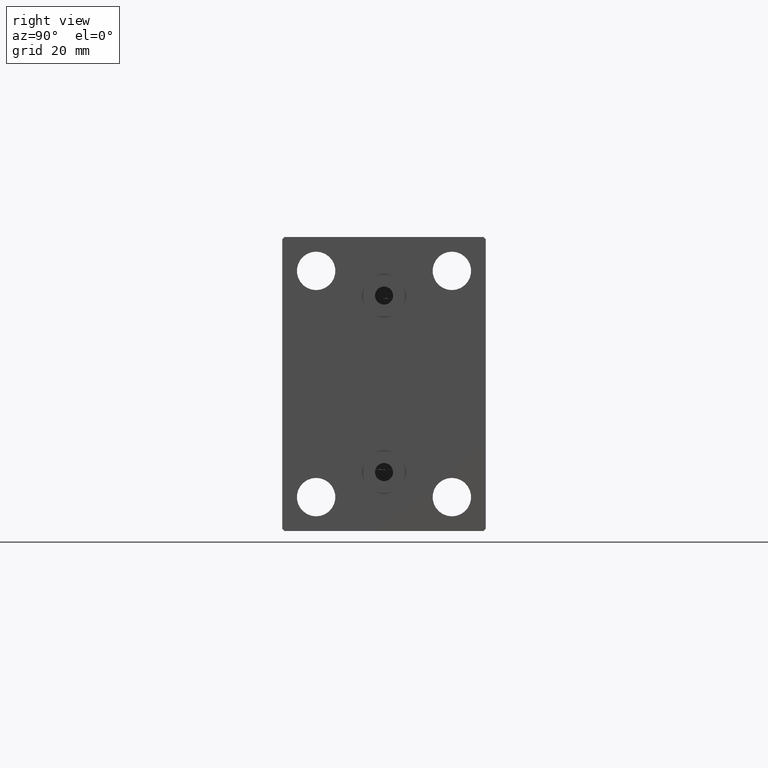
[diagram: clean part render]
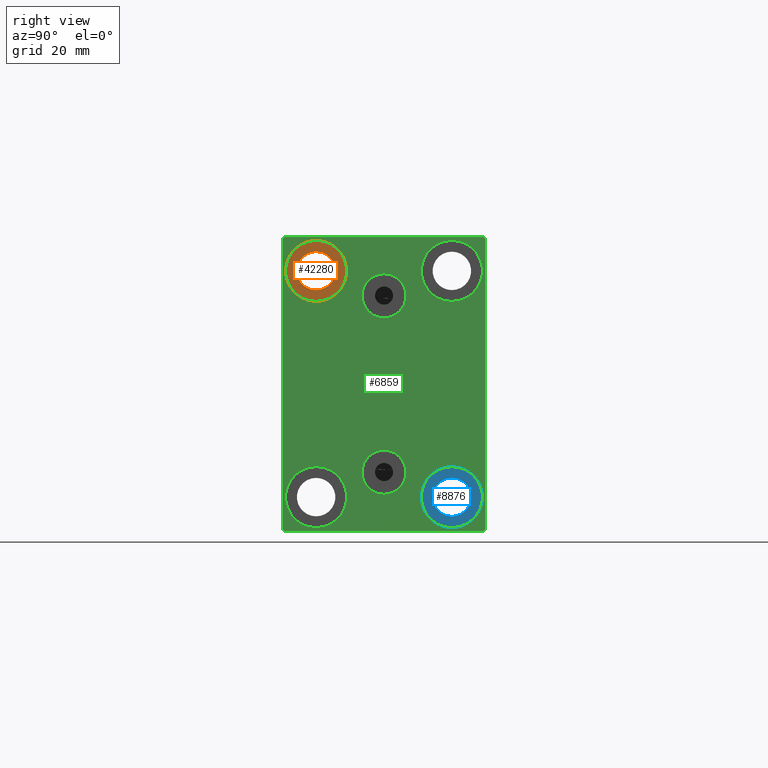
[diagram: same view with three faces highlighted in distinct colors, each labeled with its STEP entity id]
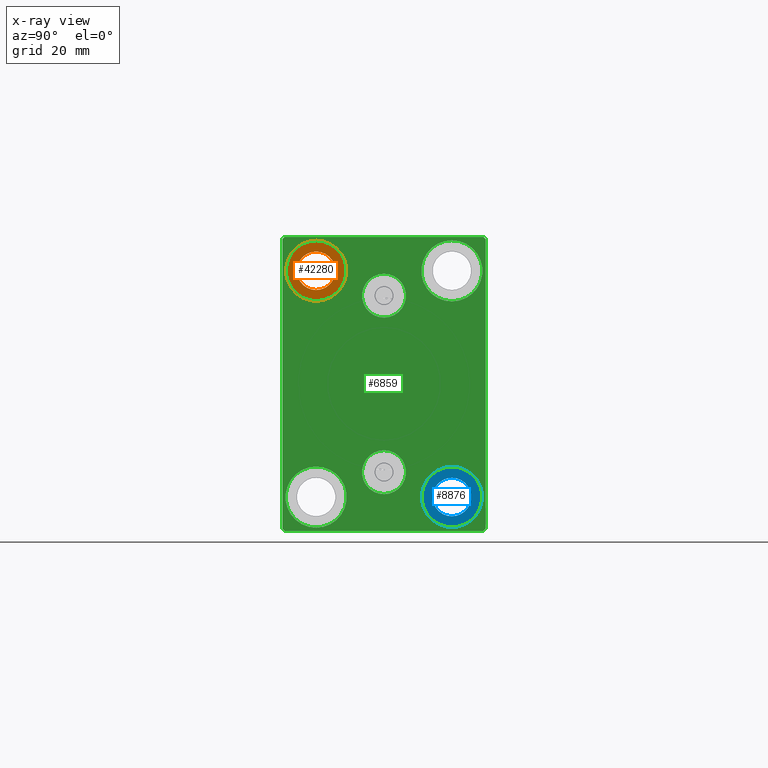
[diagram: x-ray of the same camera — body ghosted, the three highlighted faces saturated]
A machine part, right view with three faces highlighted in distinct colors.
The next image is the same camera in x-ray (body ghosted, the three faces saturated) — at least one of them is partly hidden behind the body in this view.
Their STEP definitions:

[orange] entity #42280 — the highlighted planar face has unit normal (1, 0, 0).
#24 = EDGE_CURVE ( 'NONE', #31684, #26396, #37710, .T. ) ;
#2554 = ORIENTED_EDGE ( 'NONE', *, *, #19885, .F. ) ;
#4885 = AXIS2_PLACEMENT_3D ( 'NONE', #18732, #5231, #26462 ) ;
#5231 = DIRECTION ( 'NONE',  ( -1.000000000000000000, -0.000000000000000000, -0.000000000000000000 ) ) ;
#7244 = ORIENTED_EDGE ( 'NONE', *, *, #39471, .F. ) ;
#7815 = EDGE_CURVE ( 'NONE', #26396, #31684, #14562, .T. ) ;
#8600 = ORIENTED_EDGE ( 'NONE', *, *, #7815, .T. ) ;
#9116 = CARTESIAN_POINT ( 'NONE',  ( 121.0000000000000142, -14.99999999999999645, 20.75000000000000355 ) ) ;
#9372 = VERTEX_POINT ( 'NONE', #19886 ) ;
#9648 = DIRECTION ( 'NONE',  ( 0.000000000000000000, 0.000000000000000000, -1.000000000000000000 ) ) ;
#11488 = CARTESIAN_POINT ( 'NONE',  ( 121.0000000000000142, -14.99999999999999645, 25.00000000000000000 ) ) ;
#11710 = DIRECTION ( 'NONE',  ( -1.000000000000000000, -0.000000000000000000, -0.000000000000000000 ) ) ;
#11936 = DIRECTION ( 'NONE',  ( 0.000000000000000000, 0.000000000000000000, -1.000000000000000000 ) ) ;
#12151 = CIRCLE ( 'NONE', #42560, 6.749999999999999112 ) ;
#12292 = EDGE_LOOP ( 'NONE', ( #21875, #8600 ) ) ;
#14562 = CIRCLE ( 'NONE', #39326, 4.249999999999996447 ) ;
#15556 = DIRECTION ( 'NONE',  ( -1.000000000000000000, -0.000000000000000000, -0.000000000000000000 ) ) ;
#15848 = CARTESIAN_POINT ( 'NONE',  ( 121.0000000000000142, -14.99999999999999645, 29.25000000000000000 ) ) ;
#17227 = FACE_BOUND ( 'NONE', #12292, .T. ) ;
#17440 = CARTESIAN_POINT ( 'NONE',  ( 121.0000000000000142, 0.000000000000000000, 0.000000000000000000 ) ) ;
#17647 = DIRECTION ( 'NONE',  ( 1.000000000000000000, 0.000000000000000000, -0.000000000000000000 ) ) ;
#18732 = CARTESIAN_POINT ( 'NONE',  ( 121.0000000000000142, -14.99999999999999645, 25.00000000000000000 ) ) ;
#19885 = EDGE_CURVE ( 'NONE', #27670, #9372, #23980, .T. ) ;
#19886 = CARTESIAN_POINT ( 'NONE',  ( 121.0000000000000142, -14.99999999999999645, 31.75000000000000000 ) ) ;
#19971 = AXIS2_PLACEMENT_3D ( 'NONE', #17440, #17647, #22912 ) ;
#21875 = ORIENTED_EDGE ( 'NONE', *, *, #24, .T. ) ;
#21980 = CARTESIAN_POINT ( 'NONE',  ( 121.0000000000000142, -14.99999999999999645, 25.00000000000000000 ) ) ;
#22912 = DIRECTION ( 'NONE',  ( 0.000000000000000000, 0.000000000000000000, 1.000000000000000000 ) ) ;
#23980 = CIRCLE ( 'NONE', #4885, 6.749999999999999112 ) ;
#26396 = VERTEX_POINT ( 'NONE', #9116 ) ;
#26462 = DIRECTION ( 'NONE',  ( 0.000000000000000000, 0.000000000000000000, 1.000000000000000000 ) ) ;
#26476 = DIRECTION ( 'NONE',  ( -1.000000000000000000, -0.000000000000000000, -0.000000000000000000 ) ) ;
#27670 = VERTEX_POINT ( 'NONE', #40822 ) ;
#29794 = CARTESIAN_POINT ( 'NONE',  ( 121.0000000000000142, -14.99999999999999645, 25.00000000000000000 ) ) ;
#31684 = VERTEX_POINT ( 'NONE', #15848 ) ;
#34275 = FACE_OUTER_BOUND ( 'NONE', #41586, .T. ) ;
#34486 = PLANE ( 'NONE',  #19971 ) ;
#36322 = AXIS2_PLACEMENT_3D ( 'NONE', #29794, #26476, #9648 ) ;
#37710 = CIRCLE ( 'NONE', #36322, 4.249999999999996447 ) ;
#39326 = AXIS2_PLACEMENT_3D ( 'NONE', #11488, #11710, #11936 ) ;
#39471 = EDGE_CURVE ( 'NONE', #9372, #27670, #12151, .T. ) ;
#40822 = CARTESIAN_POINT ( 'NONE',  ( 121.0000000000000142, -14.99999999999999645, 18.25000000000000355 ) ) ;
#41586 = EDGE_LOOP ( 'NONE', ( #2554, #7244 ) ) ;
#41682 = DIRECTION ( 'NONE',  ( 0.000000000000000000, 0.000000000000000000, 1.000000000000000000 ) ) ;
#42280 = ADVANCED_FACE ( 'NONE', ( #34275, #17227 ), #34486, .T. ) ;
#42560 = AXIS2_PLACEMENT_3D ( 'NONE', #21980, #15556, #41682 ) ;

[blue] entity #8876 — the highlighted planar face has unit normal (1, 0, 0).
#1765 = DIRECTION ( 'NONE',  ( -1.000000000000000000, -0.000000000000000000, -0.000000000000000000 ) ) ;
#2101 = AXIS2_PLACEMENT_3D ( 'NONE', #43088, #26258, #19398 ) ;
#2293 = FACE_OUTER_BOUND ( 'NONE', #3551, .T. ) ;
#3551 = EDGE_LOOP ( 'NONE', ( #9563, #31508 ) ) ;
#4104 = EDGE_LOOP ( 'NONE', ( #15048, #32246 ) ) ;
#4214 = EDGE_CURVE ( 'NONE', #25609, #11250, #14501, .T. ) ;
#4701 = AXIS2_PLACEMENT_3D ( 'NONE', #8734, #22245, #35744 ) ;
#5330 = VERTEX_POINT ( 'NONE', #42942 ) ;
#8734 = CARTESIAN_POINT ( 'NONE',  ( 121.0000000000000142, 14.99999999999999645, -25.00000000000000000 ) ) ;
#8876 = ADVANCED_FACE ( 'NONE', ( #2293, #29309 ), #42821, .T. ) ;
#9563 = ORIENTED_EDGE ( 'NONE', *, *, #39730, .F. ) ;
#11250 = VERTEX_POINT ( 'NONE', #13120 ) ;
#13120 = CARTESIAN_POINT ( 'NONE',  ( 121.0000000000000142, 14.99999999999999645, -31.75000000000000000 ) ) ;
#14501 = CIRCLE ( 'NONE', #22298, 6.749999999999999112 ) ;
#15048 = ORIENTED_EDGE ( 'NONE', *, *, #25784, .T. ) ;
#15063 = DIRECTION ( 'NONE',  ( 0.000000000000000000, 0.000000000000000000, 1.000000000000000000 ) ) ;
#16178 = AXIS2_PLACEMENT_3D ( 'NONE', #19012, #29242, #42966 ) ;
#19012 = CARTESIAN_POINT ( 'NONE',  ( 121.0000000000000142, 14.99999999999999645, -25.00000000000000000 ) ) ;
#19226 = EDGE_CURVE ( 'NONE', #42091, #5330, #22537, .T. ) ;
#19398 = DIRECTION ( 'NONE',  ( 0.000000000000000000, 0.000000000000000000, -1.000000000000000000 ) ) ;
#20628 = AXIS2_PLACEMENT_3D ( 'NONE', #24798, #1765, #15063 ) ;
#21183 = CIRCLE ( 'NONE', #2101, 4.249999999999996447 ) ;
#22245 = DIRECTION ( 'NONE',  ( 1.000000000000000000, 0.000000000000000000, -0.000000000000000000 ) ) ;
#22298 = AXIS2_PLACEMENT_3D ( 'NONE', #23368, #36874, #43313 ) ;
#22537 = CIRCLE ( 'NONE', #16178, 4.249999999999996447 ) ;
#23368 = CARTESIAN_POINT ( 'NONE',  ( 121.0000000000000142, 14.99999999999999645, -25.00000000000000000 ) ) ;
#24798 = CARTESIAN_POINT ( 'NONE',  ( 121.0000000000000142, 14.99999999999999645, -25.00000000000000000 ) ) ;
#25579 = CIRCLE ( 'NONE', #20628, 6.749999999999999112 ) ;
#25609 = VERTEX_POINT ( 'NONE', #38119 ) ;
#25784 = EDGE_CURVE ( 'NONE', #5330, #42091, #21183, .T. ) ;
#26258 = DIRECTION ( 'NONE',  ( -1.000000000000000000, -0.000000000000000000, -0.000000000000000000 ) ) ;
#29242 = DIRECTION ( 'NONE',  ( -1.000000000000000000, -0.000000000000000000, -0.000000000000000000 ) ) ;
#29309 = FACE_BOUND ( 'NONE', #4104, .T. ) ;
#31508 = ORIENTED_EDGE ( 'NONE', *, *, #4214, .F. ) ;
#32246 = ORIENTED_EDGE ( 'NONE', *, *, #19226, .T. ) ;
#35744 = DIRECTION ( 'NONE',  ( 0.000000000000000000, 0.000000000000000000, 1.000000000000000000 ) ) ;
#36874 = DIRECTION ( 'NONE',  ( -1.000000000000000000, -0.000000000000000000, -0.000000000000000000 ) ) ;
#38119 = CARTESIAN_POINT ( 'NONE',  ( 121.0000000000000142, 14.99999999999999645, -18.25000000000000355 ) ) ;
#39730 = EDGE_CURVE ( 'NONE', #11250, #25609, #25579, .T. ) ;
#42091 = VERTEX_POINT ( 'NONE', #43599 ) ;
#42821 = PLANE ( 'NONE',  #4701 ) ;
#42942 = CARTESIAN_POINT ( 'NONE',  ( 121.0000000000000142, 14.99999999999999645, -20.75000000000000355 ) ) ;
#42966 = DIRECTION ( 'NONE',  ( 0.000000000000000000, 0.000000000000000000, -1.000000000000000000 ) ) ;
#43088 = CARTESIAN_POINT ( 'NONE',  ( 121.0000000000000142, 14.99999999999999645, -25.00000000000000000 ) ) ;
#43313 = DIRECTION ( 'NONE',  ( 0.000000000000000000, 0.000000000000000000, 1.000000000000000000 ) ) ;
#43599 = CARTESIAN_POINT ( 'NONE',  ( 121.0000000000000142, 14.99999999999999645, -29.25000000000000000 ) ) ;

[green] entity #6859 — the highlighted planar face has unit normal (1, 0, 0).
#194 = CIRCLE ( 'NONE', #20723, 6.749999999999999112 ) ;
#683 = DIRECTION ( 'NONE',  ( 1.000000000000000000, 0.000000000000000000, -0.000000000000000000 ) ) ;
#841 = AXIS2_PLACEMENT_3D ( 'NONE', #38508, #8178, #24349 ) ;
#866 = EDGE_CURVE ( 'NONE', #35318, #8748, #28563, .T. ) ;
#1094 = ORIENTED_EDGE ( 'NONE', *, *, #39127, .T. ) ;
#1238 = DIRECTION ( 'NONE',  ( -1.000000000000000000, -0.000000000000000000, -0.000000000000000000 ) ) ;
#1866 = AXIS2_PLACEMENT_3D ( 'NONE', #32994, #36746, #16167 ) ;
#2868 = FACE_BOUND ( 'NONE', #12917, .T. ) ;
#2933 = VECTOR ( 'NONE', #29109, 1000.000000000000114 ) ;
#2968 = EDGE_LOOP ( 'NONE', ( #5769, #18904 ) ) ;
#3038 = CARTESIAN_POINT ( 'NONE',  ( 130.0000000000000000, 22.00000000000000000, -32.50000000000000711 ) ) ;
#3082 = FACE_BOUND ( 'NONE', #18721, .T. ) ;
#3550 = VECTOR ( 'NONE', #24491, 1000.000000000000000 ) ;
#3831 = LINE ( 'NONE', #17758, #10708 ) ;
#3957 = ORIENTED_EDGE ( 'NONE', *, *, #38018, .T. ) ;
#4296 = DIRECTION ( 'NONE',  ( 0.000000000000000000, 1.000000000000000000, 0.000000000000000000 ) ) ;
#4446 = CARTESIAN_POINT ( 'NONE',  ( 130.0000000000000000, 2.388061258337338150E-15, -19.49999999999999645 ) ) ;
#4507 = ORIENTED_EDGE ( 'NONE', *, *, #39370, .T. ) ;
#4963 = CARTESIAN_POINT ( 'NONE',  ( 130.0000000000000000, -14.99999999999999645, 25.00000000000000000 ) ) ;
#5030 = DIRECTION ( 'NONE',  ( 0.000000000000000000, 0.000000000000000000, 1.000000000000000000 ) ) ;
#5054 = ORIENTED_EDGE ( 'NONE', *, *, #22257, .F. ) ;
#5769 = ORIENTED_EDGE ( 'NONE', *, *, #27477, .F. ) ;
#6251 = AXIS2_PLACEMENT_3D ( 'NONE', #6744, #20904, #20248 ) ;
#6334 = CARTESIAN_POINT ( 'NONE',  ( 130.0000000000000000, 27.24999999999955236, 27.25000000000068567 ) ) ;
#6649 = VERTEX_POINT ( 'NONE', #12897 ) ;
#6744 = CARTESIAN_POINT ( 'NONE',  ( 130.0000000000000000, 14.99999999999999645, -25.00000000000000000 ) ) ;
#6841 = VERTEX_POINT ( 'NONE', #39859 ) ;
#6859 = ADVANCED_FACE ( 'NONE', ( #2868, #43830, #3082, #36963, #26129, #23244, #23027 ), #16382, .T. ) ;
#7281 = VERTEX_POINT ( 'NONE', #10004 ) ;
#7680 = DIRECTION ( 'NONE',  ( -1.000000000000000000, -0.000000000000000000, -0.000000000000000000 ) ) ;
#7769 = VERTEX_POINT ( 'NONE', #38722 ) ;
#7848 = CARTESIAN_POINT ( 'NONE',  ( 130.0000000000000000, 14.99999999999999645, -18.25000000000000355 ) ) ;
#8093 = EDGE_CURVE ( 'NONE', #7769, #32498, #19766, .T. ) ;
#8178 = DIRECTION ( 'NONE',  ( -1.000000000000000000, -0.000000000000000000, -0.000000000000000000 ) ) ;
#8250 = VECTOR ( 'NONE', #4296, 1000.000000000000000 ) ;
#8310 = LINE ( 'NONE', #42183, #2933 ) ;
#8360 = DIRECTION ( 'NONE',  ( -1.000000000000000000, -0.000000000000000000, -0.000000000000000000 ) ) ;
#8535 = ORIENTED_EDGE ( 'NONE', *, *, #17858, .T. ) ;
#8748 = VERTEX_POINT ( 'NONE', #7848 ) ;
#9010 = DIRECTION ( 'NONE',  ( -1.000000000000000000, -0.000000000000000000, -0.000000000000000000 ) ) ;
#9319 = EDGE_CURVE ( 'NONE', #14246, #24890, #31423, .T. ) ;
#9506 = CARTESIAN_POINT ( 'NONE',  ( 130.0000000000000000, 22.00000000000002132, 32.50000000000000000 ) ) ;
#9688 = CARTESIAN_POINT ( 'NONE',  ( 130.0000000000000000, 22.49999999999999289, 32.00000000000004974 ) ) ;
#9898 = VECTOR ( 'NONE', #28285, 1000.000000000000114 ) ;
#10004 = CARTESIAN_POINT ( 'NONE',  ( 130.0000000000000000, -14.99999999999999645, 31.75000000000000000 ) ) ;
#10067 = ORIENTED_EDGE ( 'NONE', *, *, #28523, .T. ) ;
#10116 = CARTESIAN_POINT ( 'NONE',  ( 130.0000000000000000, -21.99999999999999289, 32.49999999999999289 ) ) ;
#10708 = VECTOR ( 'NONE', #38142, 1000.000000000000114 ) ;
#10862 = EDGE_LOOP ( 'NONE', ( #11754, #38428 ) ) ;
#11247 = CARTESIAN_POINT ( 'NONE',  ( 130.0000000000000000, 2.388061258337338150E-15, -19.49999999999999645 ) ) ;
#11466 = CARTESIAN_POINT ( 'NONE',  ( 130.0000000000000000, -3.571693674697836683E-15, 14.64000000000000412 ) ) ;
#11653 = CARTESIAN_POINT ( 'NONE',  ( 130.0000000000000000, -22.00000000000003197, -32.50000000000000711 ) ) ;
#11754 = ORIENTED_EDGE ( 'NONE', *, *, #42969, .T. ) ;
#11942 = EDGE_CURVE ( 'NONE', #31780, #24836, #37960, .T. ) ;
#12761 = AXIS2_PLACEMENT_3D ( 'NONE', #22806, #32765, #13427 ) ;
#12897 = CARTESIAN_POINT ( 'NONE',  ( 130.0000000000000000, -14.99999999999999645, 18.25000000000000355 ) ) ;
#12917 = EDGE_LOOP ( 'NONE', ( #5054, #41939 ) ) ;
#13176 = CARTESIAN_POINT ( 'NONE',  ( 130.0000000000000000, 2.983239602722951428E-15, -14.63999999999999702 ) ) ;
#13427 = DIRECTION ( 'NONE',  ( 0.000000000000000000, 0.000000000000000000, -1.000000000000000000 ) ) ;
#13630 = LINE ( 'NONE', #6334, #17774 ) ;
#13769 = VERTEX_POINT ( 'NONE', #13176 ) ;
#14200 = DIRECTION ( 'NONE',  ( 0.000000000000000000, 0.000000000000000000, 1.000000000000000000 ) ) ;
#14246 = VERTEX_POINT ( 'NONE', #9506 ) ;
#14351 = CARTESIAN_POINT ( 'NONE',  ( 130.0000000000000000, 15.00000000000000355, 31.75000000000000000 ) ) ;
#14481 = VERTEX_POINT ( 'NONE', #14351 ) ;
#14503 = EDGE_LOOP ( 'NONE', ( #21246, #3957 ) ) ;
#14733 = ORIENTED_EDGE ( 'NONE', *, *, #8093, .T. ) ;
#14793 = CARTESIAN_POINT ( 'NONE',  ( 130.0000000000000000, 27.25000000000000711, -27.25000000000000711 ) ) ;
#14812 = AXIS2_PLACEMENT_3D ( 'NONE', #23858, #7680, #34466 ) ;
#15043 = DIRECTION ( 'NONE',  ( 0.000000000000000000, 0.000000000000000000, 1.000000000000000000 ) ) ;
#15419 = VERTEX_POINT ( 'NONE', #40876 ) ;
#15803 = CARTESIAN_POINT ( 'NONE',  ( 130.0000000000000000, 22.50000000000000000, -32.50000000000000711 ) ) ;
#16167 = DIRECTION ( 'NONE',  ( 0.000000000000000000, 0.000000000000000000, -1.000000000000000000 ) ) ;
#16314 = ORIENTED_EDGE ( 'NONE', *, *, #21430, .T. ) ;
#16382 = PLANE ( 'NONE',  #1866 ) ;
#16724 = CARTESIAN_POINT ( 'NONE',  ( 130.0000000000000000, -15.00000000000000355, -18.25000000000000355 ) ) ;
#16744 = VERTEX_POINT ( 'NONE', #32877 ) ;
#17430 = VECTOR ( 'NONE', #33273, 1000.000000000000000 ) ;
#17513 = EDGE_CURVE ( 'NONE', #42722, #14481, #28135, .T. ) ;
#17634 = CIRCLE ( 'NONE', #42415, 4.859999999999999432 ) ;
#17758 = CARTESIAN_POINT ( 'NONE',  ( 130.0000000000000000, -27.25000000000000000, 27.25000000000000000 ) ) ;
#17774 = VECTOR ( 'NONE', #36887, 1000.000000000000000 ) ;
#17858 = EDGE_CURVE ( 'NONE', #8748, #35318, #23914, .T. ) ;
#18144 = ORIENTED_EDGE ( 'NONE', *, *, #866, .T. ) ;
#18462 = DIRECTION ( 'NONE',  ( 0.000000000000000000, 0.000000000000000000, 1.000000000000000000 ) ) ;
#18721 = EDGE_LOOP ( 'NONE', ( #18144, #8535 ) ) ;
#18904 = ORIENTED_EDGE ( 'NONE', *, *, #32439, .F. ) ;
#19766 = LINE ( 'NONE', #15803, #17430 ) ;
#20248 = DIRECTION ( 'NONE',  ( 0.000000000000000000, 0.000000000000000000, 1.000000000000000000 ) ) ;
#20634 = ORIENTED_EDGE ( 'NONE', *, *, #35608, .T. ) ;
#20658 = CARTESIAN_POINT ( 'NONE',  ( 130.0000000000000000, -22.50000000000000711, -32.00000000000002132 ) ) ;
#20706 = CARTESIAN_POINT ( 'NONE',  ( 130.0000000000000000, -22.50000000000000711, 31.99999999999999289 ) ) ;
#20723 = AXIS2_PLACEMENT_3D ( 'NONE', #4963, #32416, #18462 ) ;
#20904 = DIRECTION ( 'NONE',  ( -1.000000000000000000, -0.000000000000000000, -0.000000000000000000 ) ) ;
#21246 = ORIENTED_EDGE ( 'NONE', *, *, #17513, .T. ) ;
#21430 = EDGE_CURVE ( 'NONE', #36306, #15419, #29665, .T. ) ;
#21666 = EDGE_LOOP ( 'NONE', ( #20634, #16314 ) ) ;
#22257 = EDGE_CURVE ( 'NONE', #22749, #6841, #17634, .T. ) ;
#22453 = ORIENTED_EDGE ( 'NONE', *, *, #9319, .T. ) ;
#22749 = VERTEX_POINT ( 'NONE', #11466 ) ;
#22806 = CARTESIAN_POINT ( 'NONE',  ( 130.0000000000000000, -3.571693674697836683E-15, 19.50000000000000355 ) ) ;
#23027 = FACE_OUTER_BOUND ( 'NONE', #29398, .T. ) ;
#23244 = FACE_BOUND ( 'NONE', #21666, .T. ) ;
#23387 = AXIS2_PLACEMENT_3D ( 'NONE', #26786, #40296, #15043 ) ;
#23456 = CIRCLE ( 'NONE', #841, 6.749999999999999112 ) ;
#23617 = CARTESIAN_POINT ( 'NONE',  ( 130.0000000000000000, -22.50000000000000711, 32.49999999999999289 ) ) ;
#23721 = EDGE_CURVE ( 'NONE', #6841, #22749, #39665, .T. ) ;
#23858 = CARTESIAN_POINT ( 'NONE',  ( 130.0000000000000000, -15.00000000000000355, -25.00000000000000000 ) ) ;
#23914 = CIRCLE ( 'NONE', #6251, 6.749999999999999112 ) ;
#24349 = DIRECTION ( 'NONE',  ( 0.000000000000000000, 0.000000000000000000, 1.000000000000000000 ) ) ;
#24491 = DIRECTION ( 'NONE',  ( 0.000000000000000000, 0.000000000000000000, -1.000000000000000000 ) ) ;
#24749 = DIRECTION ( 'NONE',  ( 1.000000000000000000, 0.000000000000000000, -0.000000000000000000 ) ) ;
#24836 = VERTEX_POINT ( 'NONE', #3038 ) ;
#24890 = VERTEX_POINT ( 'NONE', #10116 ) ;
#25678 = DIRECTION ( 'NONE',  ( 0.000000000000000000, -1.000000000000000000, -1.541976423090495387E-16 ) ) ;
#26009 = ORIENTED_EDGE ( 'NONE', *, *, #27375, .T. ) ;
#26129 = FACE_BOUND ( 'NONE', #14503, .T. ) ;
#26452 = AXIS2_PLACEMENT_3D ( 'NONE', #42885, #9010, #29371 ) ;
#26786 = CARTESIAN_POINT ( 'NONE',  ( 130.0000000000000000, -14.99999999999999645, 25.00000000000000000 ) ) ;
#27375 = EDGE_CURVE ( 'NONE', #24836, #7769, #42474, .T. ) ;
#27477 = EDGE_CURVE ( 'NONE', #16744, #13769, #34646, .T. ) ;
#28135 = CIRCLE ( 'NONE', #43739, 6.749999999999999112 ) ;
#28285 = DIRECTION ( 'NONE',  ( -0.000000000000000000, 0.7071067811865474617, 0.7071067811865474617 ) ) ;
#28523 = EDGE_CURVE ( 'NONE', #40566, #41522, #33579, .T. ) ;
#28563 = CIRCLE ( 'NONE', #26452, 6.749999999999999112 ) ;
#28858 = ORIENTED_EDGE ( 'NONE', *, *, #38928, .T. ) ;
#29109 = DIRECTION ( 'NONE',  ( -0.000000000000000000, 0.7071067811865376918, -0.7071067811865573427 ) ) ;
#29371 = DIRECTION ( 'NONE',  ( 0.000000000000000000, 0.000000000000000000, 1.000000000000000000 ) ) ;
#29398 = EDGE_LOOP ( 'NONE', ( #22453, #4507, #10067, #1094, #43684, #26009, #14733, #28858 ) ) ;
#29665 = CIRCLE ( 'NONE', #14812, 6.749999999999999112 ) ;
#29769 = CIRCLE ( 'NONE', #23387, 6.749999999999999112 ) ;
#31330 = CARTESIAN_POINT ( 'NONE',  ( 130.0000000000000000, -3.571693674697836683E-15, 19.50000000000000355 ) ) ;
#31423 = LINE ( 'NONE', #31871, #37228 ) ;
#31780 = VERTEX_POINT ( 'NONE', #11653 ) ;
#31871 = CARTESIAN_POINT ( 'NONE',  ( 130.0000000000000000, 22.49999999999999289, 32.50000000000000000 ) ) ;
#32238 = DIRECTION ( 'NONE',  ( 0.000000000000000000, 0.000000000000000000, 1.000000000000000000 ) ) ;
#32416 = DIRECTION ( 'NONE',  ( -1.000000000000000000, -0.000000000000000000, -0.000000000000000000 ) ) ;
#32439 = EDGE_CURVE ( 'NONE', #13769, #16744, #37556, .T. ) ;
#32498 = VERTEX_POINT ( 'NONE', #9688 ) ;
#32765 = DIRECTION ( 'NONE',  ( 1.000000000000000000, 0.000000000000000000, 0.000000000000000000 ) ) ;
#32877 = CARTESIAN_POINT ( 'NONE',  ( 130.0000000000000000, 2.388061258337338150E-15, -24.35999999999999588 ) ) ;
#32994 = CARTESIAN_POINT ( 'NONE',  ( 130.0000000000000000, 0.000000000000000000, 0.000000000000000000 ) ) ;
#33273 = DIRECTION ( 'NONE',  ( 0.000000000000000000, -1.067522139062650425E-16, 1.000000000000000000 ) ) ;
#33305 = CIRCLE ( 'NONE', #36846, 6.749999999999999112 ) ;
#33428 = EDGE_CURVE ( 'NONE', #7281, #6649, #29769, .T. ) ;
#33579 = LINE ( 'NONE', #23617, #3550 ) ;
#33998 = DIRECTION ( 'NONE',  ( 1.000000000000000000, 0.000000000000000000, 0.000000000000000000 ) ) ;
#34466 = DIRECTION ( 'NONE',  ( 0.000000000000000000, 0.000000000000000000, 1.000000000000000000 ) ) ;
#34646 = CIRCLE ( 'NONE', #41705, 4.859999999999999432 ) ;
#35318 = VERTEX_POINT ( 'NONE', #43248 ) ;
#35564 = CARTESIAN_POINT ( 'NONE',  ( 130.0000000000000000, 15.00000000000000355, 25.00000000000000000 ) ) ;
#35608 = EDGE_CURVE ( 'NONE', #15419, #36306, #23456, .T. ) ;
#36306 = VERTEX_POINT ( 'NONE', #16724 ) ;
#36746 = DIRECTION ( 'NONE',  ( 1.000000000000000000, 0.000000000000000000, 0.000000000000000000 ) ) ;
#36846 = AXIS2_PLACEMENT_3D ( 'NONE', #38688, #8360, #5030 ) ;
#36887 = DIRECTION ( 'NONE',  ( -0.000000000000000000, -0.7071067811865622277, 0.7071067811865328068 ) ) ;
#36963 = FACE_BOUND ( 'NONE', #10862, .T. ) ;
#37107 = DIRECTION ( 'NONE',  ( 0.000000000000000000, 0.000000000000000000, -1.000000000000000000 ) ) ;
#37228 = VECTOR ( 'NONE', #25678, 1000.000000000000000 ) ;
#37556 = CIRCLE ( 'NONE', #38247, 4.859999999999999432 ) ;
#37960 = LINE ( 'NONE', #42162, #8250 ) ;
#38018 = EDGE_CURVE ( 'NONE', #14481, #42722, #33305, .T. ) ;
#38142 = DIRECTION ( 'NONE',  ( 0.000000000000000000, -0.7071067811865474617, -0.7071067811865474617 ) ) ;
#38247 = AXIS2_PLACEMENT_3D ( 'NONE', #4446, #683, #14200 ) ;
#38262 = DIRECTION ( 'NONE',  ( 0.000000000000000000, 0.000000000000000000, 1.000000000000000000 ) ) ;
#38428 = ORIENTED_EDGE ( 'NONE', *, *, #33428, .T. ) ;
#38508 = CARTESIAN_POINT ( 'NONE',  ( 130.0000000000000000, -15.00000000000000355, -25.00000000000000000 ) ) ;
#38688 = CARTESIAN_POINT ( 'NONE',  ( 130.0000000000000000, 15.00000000000000355, 25.00000000000000000 ) ) ;
#38722 = CARTESIAN_POINT ( 'NONE',  ( 130.0000000000000000, 22.50000000000000000, -32.00000000000002132 ) ) ;
#38928 = EDGE_CURVE ( 'NONE', #32498, #14246, #13630, .T. ) ;
#39127 = EDGE_CURVE ( 'NONE', #41522, #31780, #8310, .T. ) ;
#39370 = EDGE_CURVE ( 'NONE', #24890, #40566, #3831, .T. ) ;
#39665 = CIRCLE ( 'NONE', #12761, 4.859999999999999432 ) ;
#39859 = CARTESIAN_POINT ( 'NONE',  ( 130.0000000000000000, -2.976515330312223406E-15, 24.36000000000000298 ) ) ;
#40296 = DIRECTION ( 'NONE',  ( -1.000000000000000000, -0.000000000000000000, -0.000000000000000000 ) ) ;
#40566 = VERTEX_POINT ( 'NONE', #20706 ) ;
#40876 = CARTESIAN_POINT ( 'NONE',  ( 130.0000000000000000, -15.00000000000000355, -31.75000000000000000 ) ) ;
#41522 = VERTEX_POINT ( 'NONE', #20658 ) ;
#41705 = AXIS2_PLACEMENT_3D ( 'NONE', #11247, #24749, #38262 ) ;
#41939 = ORIENTED_EDGE ( 'NONE', *, *, #23721, .F. ) ;
#42162 = CARTESIAN_POINT ( 'NONE',  ( 130.0000000000000000, -22.50000000000000711, -32.50000000000000711 ) ) ;
#42183 = CARTESIAN_POINT ( 'NONE',  ( 130.0000000000000000, -27.25000000000033040, -27.24999999999957367 ) ) ;
#42223 = CARTESIAN_POINT ( 'NONE',  ( 130.0000000000000000, 15.00000000000000355, 18.25000000000000355 ) ) ;
#42415 = AXIS2_PLACEMENT_3D ( 'NONE', #31330, #33998, #37107 ) ;
#42474 = LINE ( 'NONE', #14793, #9898 ) ;
#42722 = VERTEX_POINT ( 'NONE', #42223 ) ;
#42885 = CARTESIAN_POINT ( 'NONE',  ( 130.0000000000000000, 14.99999999999999645, -25.00000000000000000 ) ) ;
#42969 = EDGE_CURVE ( 'NONE', #6649, #7281, #194, .T. ) ;
#43248 = CARTESIAN_POINT ( 'NONE',  ( 130.0000000000000000, 14.99999999999999645, -31.75000000000000000 ) ) ;
#43684 = ORIENTED_EDGE ( 'NONE', *, *, #11942, .T. ) ;
#43739 = AXIS2_PLACEMENT_3D ( 'NONE', #35564, #1238, #32238 ) ;
#43830 = FACE_BOUND ( 'NONE', #2968, .T. ) ;